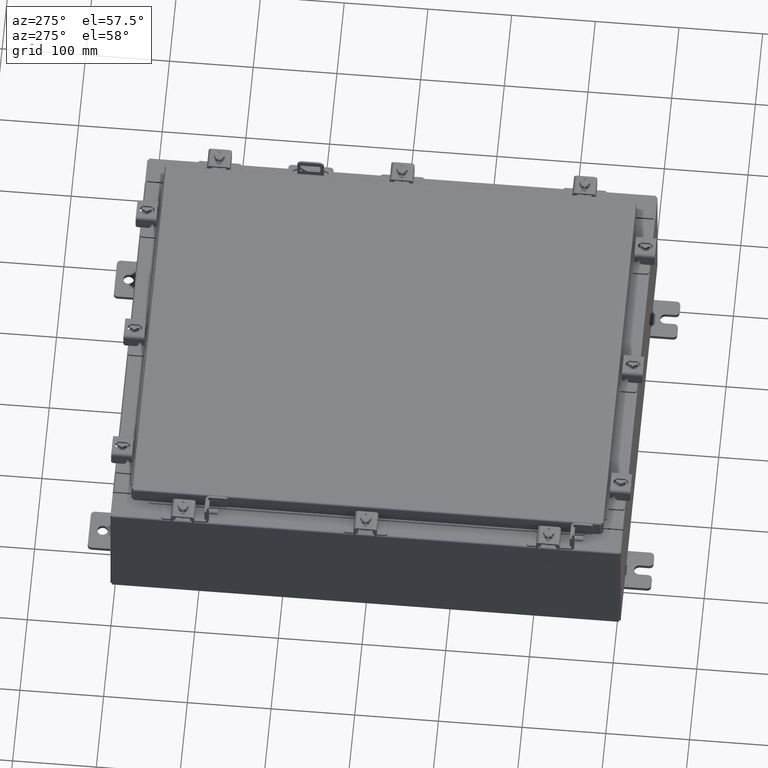
[diagram: clean part render]
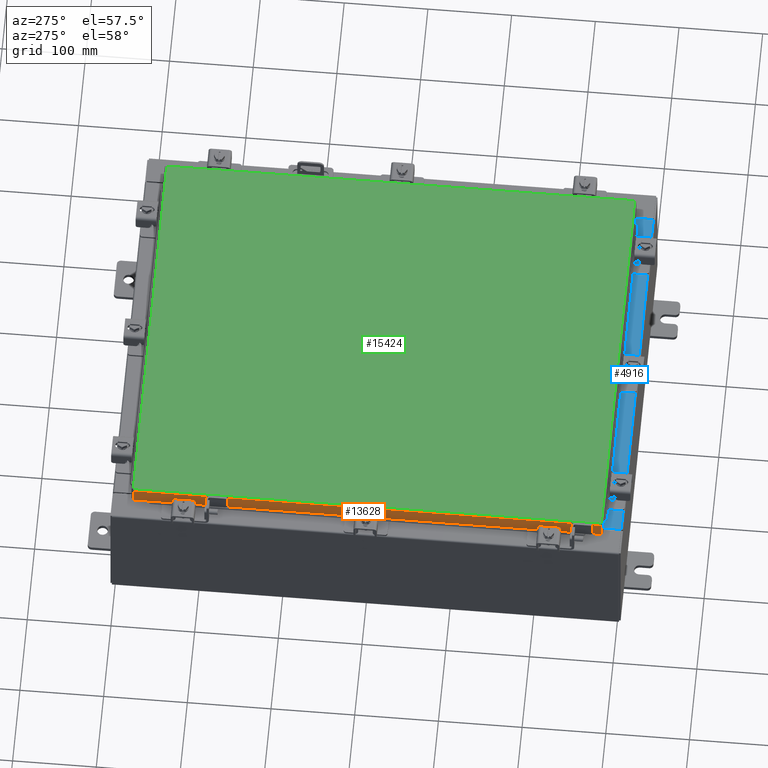
[diagram: same view with three faces highlighted in distinct colors, each labeled with its STEP entity id]
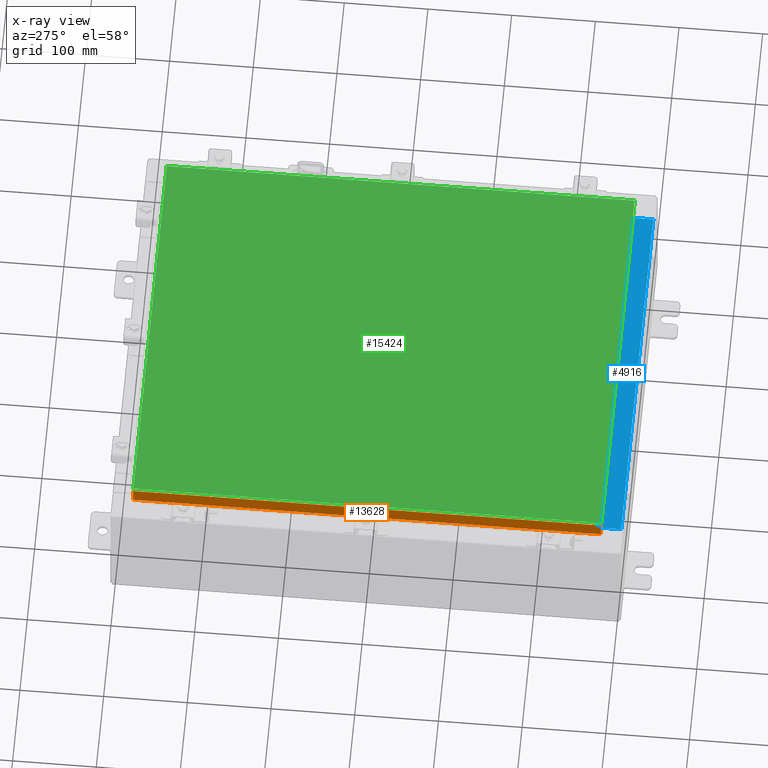
[diagram: x-ray of the same camera — body ghosted, the three highlighted faces saturated]
A machine part, auxiliary view with three faces highlighted in distinct colors.
The next image is the same camera in x-ray (body ghosted, the three faces saturated) — at least one of them is partly hidden behind the body in this view.
Their STEP definitions:

[orange] entity #13628 — the highlighted planar face has unit normal (1, 0, -0).
#148 = LINE ( 'NONE', #17600, #9982 ) ;
#966 = CARTESIAN_POINT ( 'NONE',  ( -9.078000000000001200, -11.00515786437626700, -0.8499999999999996400 ) ) ;
#3455 = VECTOR ( 'NONE', #18270, 39.37007874015748100 ) ;
#3591 = VERTEX_POINT ( 'NONE', #966 ) ;
#3809 = VECTOR ( 'NONE', #10594, 39.37007874015748100 ) ;
#4239 = VERTEX_POINT ( 'NONE', #7677 ) ;
#4278 = VECTOR ( 'NONE', #8532, 39.37007874015748100 ) ;
#4714 = DIRECTION ( 'NONE',  ( -2.818880942772360100E-015, 0.0000000000000000000, -1.000000000000000000 ) ) ;
#4993 = ORIENTED_EDGE ( 'NONE', *, *, #18828, .F. ) ;
#6355 = VERTEX_POINT ( 'NONE', #14570 ) ;
#6629 = CARTESIAN_POINT ( 'NONE',  ( -9.078000000000001200, 11.00515786437627100, -0.8499999999999970900 ) ) ;
#6729 = DIRECTION ( 'NONE',  ( -2.818880942772360100E-015, 6.982962677686267500E-015, -1.000000000000000000 ) ) ;
#6777 = CARTESIAN_POINT ( 'NONE',  ( -9.078000000000001200, -11.09400000000000100, -0.8499999999999996400 ) ) ;
#7426 = LINE ( 'NONE', #10744, #16046 ) ;
#7677 = CARTESIAN_POINT ( 'NONE',  ( -9.077999999999994100, 10.25515786437626900, -0.8500000000000005300 ) ) ;
#7822 = EDGE_LOOP ( 'NONE', ( #12892, #18984, #4993, #16310, #17466, #10710 ) ) ;
#7955 = AXIS2_PLACEMENT_3D ( 'NONE', #15012, #15078, #4714 ) ;
#8440 = LINE ( 'NONE', #15774, #3809 ) ;
#8532 = DIRECTION ( 'NONE',  ( 4.379057701015054300E-047, 1.000000000000000000, 1.169666303398706600E-016 ) ) ;
#8899 = LINE ( 'NONE', #6777, #4278 ) ;
#9445 = EDGE_CURVE ( 'NONE', #6355, #17387, #8440, .T. ) ;
#9982 = VECTOR ( 'NONE', #19384, 39.37007874015748100 ) ;
#10594 = DIRECTION ( 'NONE',  ( 3.297150052053607100E-031, -1.000000000000000000, -8.987264781119274900E-046 ) ) ;
#10710 = ORIENTED_EDGE ( 'NONE', *, *, #17999, .F. ) ;
#10744 = CARTESIAN_POINT ( 'NONE',  ( -9.077999999999994100, -10.25515786437626900, -0.8500000000000005300 ) ) ;
#12519 = EDGE_CURVE ( 'NONE', #18651, #4239, #7426, .T. ) ;
#12670 = LINE ( 'NONE', #18202, #3455 ) ;
#12892 = ORIENTED_EDGE ( 'NONE', *, *, #9445, .F. ) ;
#13245 = LINE ( 'NONE', #13543, #21411 ) ;
#13353 = PLANE ( 'NONE',  #7955 ) ;
#13543 = CARTESIAN_POINT ( 'NONE',  ( -9.077999999999999400, -11.00515786437627100, -0.07469999999999978000 ) ) ;
#13628 = ADVANCED_FACE ( 'NONE', ( #17649 ), #13353, .F. ) ;
#14209 = DIRECTION ( 'NONE',  ( -0.0000000000000000000, 1.000000000000000000, -0.0000000000000000000 ) ) ;
#14570 = CARTESIAN_POINT ( 'NONE',  ( -9.077999999999999400, 11.00515786437626900, -0.08770000000000007000 ) ) ;
#15012 = CARTESIAN_POINT ( 'NONE',  ( -9.077999999999999400, -2.993152817254264100E-030, 2.585061485449906600E-014 ) ) ;
#15078 = DIRECTION ( 'NONE',  ( 1.000000000000000000, 3.297150052053607100E-031, -2.818880942772360100E-015 ) ) ;
#15774 = CARTESIAN_POINT ( 'NONE',  ( -9.077999999999999400, -11.09400000000000100, -0.08770000000000007000 ) ) ;
#16046 = VECTOR ( 'NONE', #14209, 39.37007874015748100 ) ;
#16310 = ORIENTED_EDGE ( 'NONE', *, *, #12519, .F. ) ;
#17387 = VERTEX_POINT ( 'NONE', #19867 ) ;
#17466 = ORIENTED_EDGE ( 'NONE', *, *, #18563, .F. ) ;
#17600 = CARTESIAN_POINT ( 'NONE',  ( -9.077999999999999400, 11.00515786437626700, 1.026992214834840400E-013 ) ) ;
#17649 = FACE_OUTER_BOUND ( 'NONE', #7822, .T. ) ;
#17999 = EDGE_CURVE ( 'NONE', #17387, #3591, #13245, .T. ) ;
#18202 = CARTESIAN_POINT ( 'NONE',  ( -9.078000000000001200, -11.09400000000000100, -0.8499999999999996400 ) ) ;
#18252 = EDGE_CURVE ( 'NONE', #6355, #21663, #148, .T. ) ;
#18270 = DIRECTION ( 'NONE',  ( 4.379057701015054300E-047, 1.000000000000000000, 1.169666303398706600E-016 ) ) ;
#18563 = EDGE_CURVE ( 'NONE', #3591, #18651, #12670, .T. ) ;
#18651 = VERTEX_POINT ( 'NONE', #21984 ) ;
#18828 = EDGE_CURVE ( 'NONE', #4239, #21663, #8899, .T. ) ;
#18984 = ORIENTED_EDGE ( 'NONE', *, *, #18252, .T. ) ;
#19384 = DIRECTION ( 'NONE',  ( -2.818880942772360100E-015, 6.982962677686267500E-015, -1.000000000000000000 ) ) ;
#19867 = CARTESIAN_POINT ( 'NONE',  ( -9.077999999999999400, -11.00515786437626900, -0.08770000000000007000 ) ) ;
#21411 = VECTOR ( 'NONE', #6729, 39.37007874015748100 ) ;
#21663 = VERTEX_POINT ( 'NONE', #6629 ) ;
#21984 = CARTESIAN_POINT ( 'NONE',  ( -9.077999999999994100, -10.25515786437626900, -0.8500000000000005300 ) ) ;

[blue] entity #4916 — the highlighted planar face has unit normal (-0, -0, 1).
#2610 = ORIENTED_EDGE ( 'NONE', *, *, #16714, .T. ) ;
#3254 = VECTOR ( 'NONE', #17944, 39.37007874015748100 ) ;
#3784 = LINE ( 'NONE', #10680, #13009 ) ;
#3804 = LINE ( 'NONE', #11287, #11931 ) ;
#4916 = ADVANCED_FACE ( 'NONE', ( #12934 ), #13257, .T. ) ;
#5991 = DIRECTION ( 'NONE',  ( -1.000000000000000000, 0.0000000000000000000, 0.0000000000000000000 ) ) ;
#7389 = CARTESIAN_POINT ( 'NONE',  ( -8.637200000000000000, -0.08770000000000000000, 3.000000000000000900 ) ) ;
#7400 = ORIENTED_EDGE ( 'NONE', *, *, #16625, .F. ) ;
#7900 = LINE ( 'NONE', #12727, #3254 ) ;
#8531 = VERTEX_POINT ( 'NONE', #18095 ) ;
#9349 = VERTEX_POINT ( 'NONE', #14277 ) ;
#10680 = CARTESIAN_POINT ( 'NONE',  ( -8.637200000000000000, -0.07469999999999973900, 3.000000000000000900 ) ) ;
#10962 = AXIS2_PLACEMENT_3D ( 'NONE', #21941, #20326, #18535 ) ;
#11287 = CARTESIAN_POINT ( 'NONE',  ( -2.773851121247453900E-018, -0.08770000000000000000, 3.000000000000001300 ) ) ;
#11349 = VECTOR ( 'NONE', #5991, 39.37007874015748100 ) ;
#11886 = LINE ( 'NONE', #18082, #11349 ) ;
#11931 = VECTOR ( 'NONE', #21716, 39.37007874015748100 ) ;
#12727 = CARTESIAN_POINT ( 'NONE',  ( 8.637200000000000000, -1.300299999999999800, 3.000000000000005300 ) ) ;
#12934 = FACE_OUTER_BOUND ( 'NONE', #16846, .T. ) ;
#13009 = VECTOR ( 'NONE', #21079, 39.37007874015748100 ) ;
#13065 = VERTEX_POINT ( 'NONE', #15487 ) ;
#13257 = PLANE ( 'NONE',  #10962 ) ;
#13783 = ORIENTED_EDGE ( 'NONE', *, *, #17179, .F. ) ;
#14277 = CARTESIAN_POINT ( 'NONE',  ( 8.637200000000000000, -0.08769999999999965300, 3.000000000000000900 ) ) ;
#15487 = CARTESIAN_POINT ( 'NONE',  ( -8.637200000000000000, -1.287299999999999200, 3.000000000000005300 ) ) ;
#16625 = EDGE_CURVE ( 'NONE', #9349, #8531, #7900, .T. ) ;
#16714 = EDGE_CURVE ( 'NONE', #9349, #19050, #3804, .T. ) ;
#16846 = EDGE_LOOP ( 'NONE', ( #13783, #20125, #7400, #2610 ) ) ;
#17179 = EDGE_CURVE ( 'NONE', #13065, #19050, #3784, .T. ) ;
#17749 = EDGE_CURVE ( 'NONE', #8531, #13065, #11886, .T. ) ;
#17944 = DIRECTION ( 'NONE',  ( -0.0000000000000000000, -1.000000000000000000, 3.566381192773190000E-015 ) ) ;
#18082 = CARTESIAN_POINT ( 'NONE',  ( 8.637200000000000000, -1.287299999999999900, 3.000000000000005300 ) ) ;
#18095 = CARTESIAN_POINT ( 'NONE',  ( 8.637200000000000000, -1.287299999999999900, 3.000000000000005300 ) ) ;
#18535 = DIRECTION ( 'NONE',  ( 0.0000000000000000000, -1.000000000000000000, 3.566381192773190000E-015 ) ) ;
#19050 = VERTEX_POINT ( 'NONE', #7389 ) ;
#20125 = ORIENTED_EDGE ( 'NONE', *, *, #17749, .F. ) ;
#20326 = DIRECTION ( 'NONE',  ( 0.0000000000000000000, 3.566381192773190000E-015, 1.000000000000000000 ) ) ;
#21079 = DIRECTION ( 'NONE',  ( -0.0000000000000000000, 1.000000000000000000, -3.566381192773190000E-015 ) ) ;
#21716 = DIRECTION ( 'NONE',  ( -1.000000000000000000, 3.162886113166609200E-017, -1.128005754888089100E-031 ) ) ;
#21941 = CARTESIAN_POINT ( 'NONE',  ( 0.0000000000000000000, 1.069354855923099900E-014, 3.000000000000000900 ) ) ;

[green] entity #15424 — the highlighted planar face has unit normal (0, 0, -1).
#279 = EDGE_CURVE ( 'NONE', #3476, #9658, #3585, .T. ) ;
#1069 = CARTESIAN_POINT ( 'NONE',  ( 0.0000000000000000000, 0.0000000000000000000, 0.0000000000000000000 ) ) ;
#1296 = CARTESIAN_POINT ( 'NONE',  ( -8.990299999999999500, -11.00630000000000100, -2.048885995248197400E-016 ) ) ;
#1302 = ORIENTED_EDGE ( 'NONE', *, *, #279, .T. ) ;
#1638 = CARTESIAN_POINT ( 'NONE',  ( 8.990299999999999500, -11.00630000000000000, -7.512581982576723400E-016 ) ) ;
#1809 = AXIS2_PLACEMENT_3D ( 'NONE', #1069, #13238, #2841 ) ;
#2841 = DIRECTION ( 'NONE',  ( -1.000000000000000000, 0.0000000000000000000, -0.0000000000000000000 ) ) ;
#3019 = VECTOR ( 'NONE', #18093, 39.37007874015748100 ) ;
#3476 = VERTEX_POINT ( 'NONE', #10323 ) ;
#3585 = LINE ( 'NONE', #9503, #3019 ) ;
#3879 = EDGE_CURVE ( 'NONE', #9658, #4536, #9913, .T. ) ;
#3942 = ORIENTED_EDGE ( 'NONE', *, *, #5519, .T. ) ;
#4536 = VERTEX_POINT ( 'NONE', #1638 ) ;
#4823 = VECTOR ( 'NONE', #21084, 39.37007874015748100 ) ;
#5519 = EDGE_CURVE ( 'NONE', #19118, #3476, #21074, .T. ) ;
#6231 = DIRECTION ( 'NONE',  ( 1.000000000000000000, -0.0000000000000000000, -0.0000000000000000000 ) ) ;
#6667 = VECTOR ( 'NONE', #12151, 39.37007874015748100 ) ;
#8038 = PLANE ( 'NONE',  #1809 ) ;
#9375 = VECTOR ( 'NONE', #6231, 39.37007874015748100 ) ;
#9503 = CARTESIAN_POINT ( 'NONE',  ( -8.990299999999999500, 11.00630000000000100, -2.048885995248197400E-016 ) ) ;
#9653 = CARTESIAN_POINT ( 'NONE',  ( -8.990299999999999500, -11.00630000000000100, -2.048885995248197400E-016 ) ) ;
#9658 = VERTEX_POINT ( 'NONE', #1296 ) ;
#9913 = LINE ( 'NONE', #9653, #9375 ) ;
#10323 = CARTESIAN_POINT ( 'NONE',  ( -8.990299999999999500, 11.00630000000000100, -2.048885995248197400E-016 ) ) ;
#10688 = CARTESIAN_POINT ( 'NONE',  ( 8.990299999999999500, -11.00630000000000000, -7.512581982576723400E-016 ) ) ;
#12151 = DIRECTION ( 'NONE',  ( -1.000000000000000000, -0.0000000000000000000, -0.0000000000000000000 ) ) ;
#12208 = CARTESIAN_POINT ( 'NONE',  ( 8.990299999999999500, 11.00630000000000000, -2.048885995248197400E-016 ) ) ;
#13238 = DIRECTION ( 'NONE',  ( 0.0000000000000000000, 0.0000000000000000000, -1.000000000000000000 ) ) ;
#13800 = FACE_OUTER_BOUND ( 'NONE', #22442, .T. ) ;
#15424 = ADVANCED_FACE ( 'NONE', ( #13800 ), #8038, .F. ) ;
#16190 = CARTESIAN_POINT ( 'NONE',  ( 8.990299999999999500, 11.00630000000000000, -2.048885995248197400E-016 ) ) ;
#16531 = ORIENTED_EDGE ( 'NONE', *, *, #3879, .T. ) ;
#18086 = LINE ( 'NONE', #10688, #4823 ) ;
#18093 = DIRECTION ( 'NONE',  ( 0.0000000000000000000, -1.000000000000000000, 0.0000000000000000000 ) ) ;
#19118 = VERTEX_POINT ( 'NONE', #16190 ) ;
#21074 = LINE ( 'NONE', #12208, #6667 ) ;
#21084 = DIRECTION ( 'NONE',  ( 0.0000000000000000000, 1.000000000000000000, 0.0000000000000000000 ) ) ;
#21172 = EDGE_CURVE ( 'NONE', #4536, #19118, #18086, .T. ) ;
#22109 = ORIENTED_EDGE ( 'NONE', *, *, #21172, .T. ) ;
#22442 = EDGE_LOOP ( 'NONE', ( #16531, #22109, #3942, #1302 ) ) ;